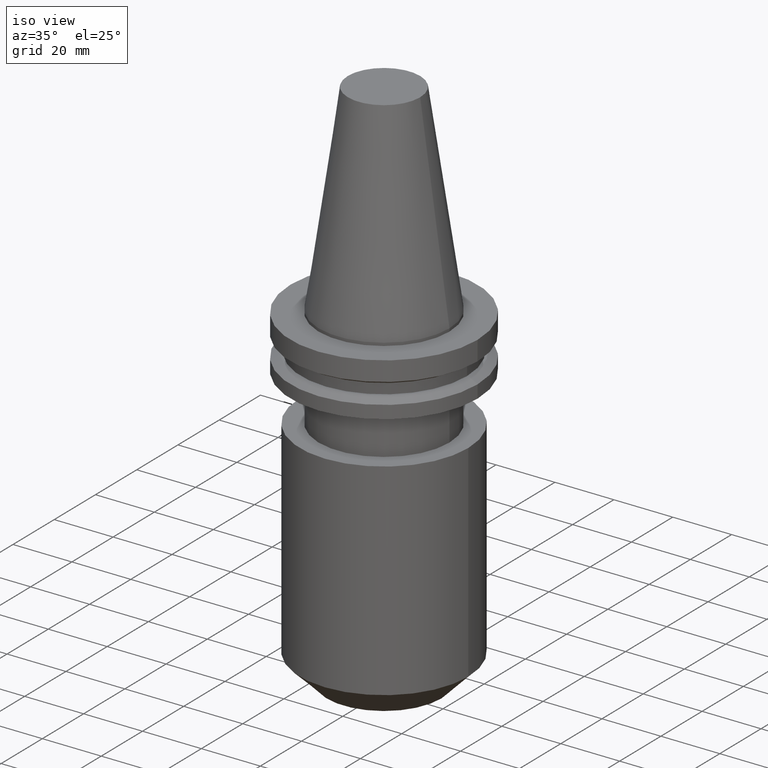
[diagram: clean part render]
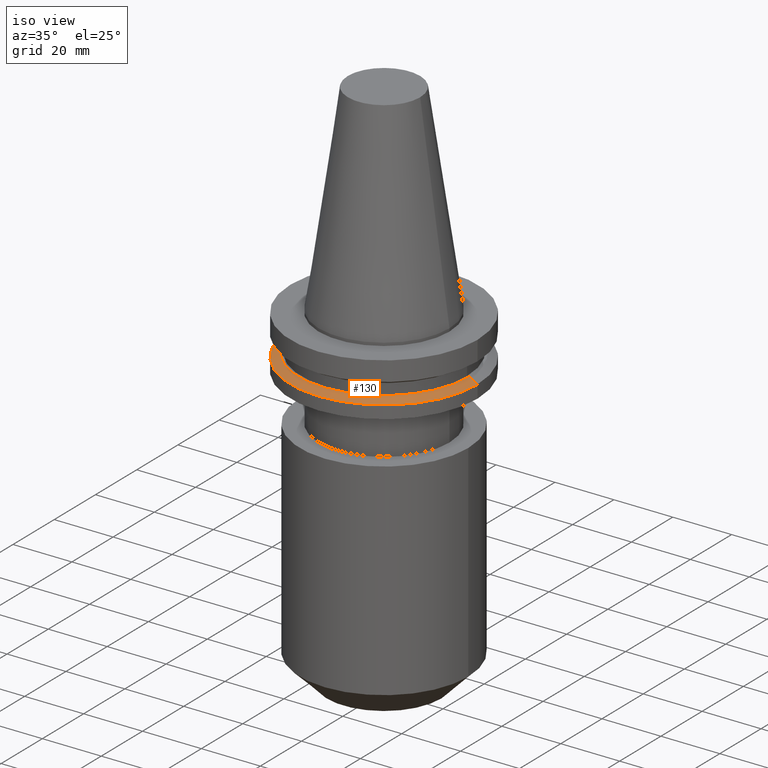
[diagram: same view with one face highlighted and labeled with its STEP entity id]
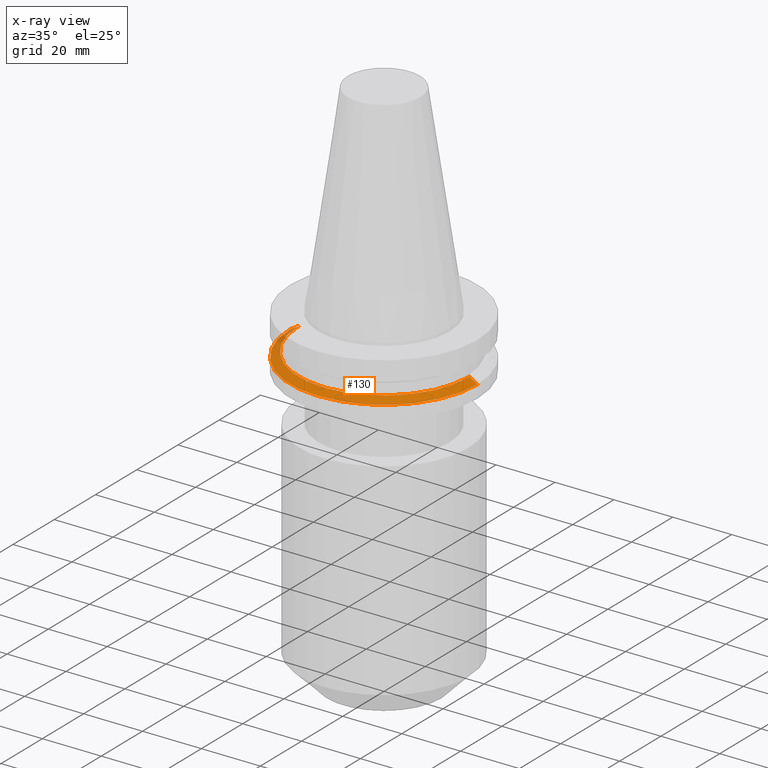
[diagram: x-ray of the same camera — body ghosted, the highlighted face saturated]
A machine part, iso view. The second image highlights one B-rep face of the part: STEP entity #130.
The next image is the same camera in x-ray: the body ghosted, the highlighted face saturated — about 3% of this face is hidden behind the body in this view.
In plain terms, the highlighted conical surface has half-angle 60 deg.
Its self-contained STEP definition (entity closure, byte-faithful):
#4 = EDGE_LOOP ( 'NONE', ( #632, #399, #512, #13 ) ) ;
#10 = DIRECTION ( 'NONE',  ( 1.000000000000000000, 0.000000000000000000, 0.000000000000000000 ) ) ;
#13 = ORIENTED_EDGE ( 'NONE', *, *, #793, .T. ) ;
#67 = CARTESIAN_POINT ( 'NONE',  ( 0.000000000000000000, 0.000000000000000000, -14.65472339340266572 ) ) ;
#126 = CARTESIAN_POINT ( 'NONE',  ( 31.75000000000000000, 3.888253587292846476E-15, -14.65472339340266572 ) ) ;
#127 = CARTESIAN_POINT ( 'NONE',  ( 0.000000000000000000, 0.000000000000000000, -14.65472339340266572 ) ) ;
#130 = ADVANCED_FACE ( 'NONE', ( #587 ), #358, .T. ) ;
#143 = CIRCLE ( 'NONE', #252, 28.97919780457008088 ) ;
#169 = VECTOR ( 'NONE', #365, 1000.000000000000000 ) ;
#191 = DIRECTION ( 'NONE',  ( -1.000000000000000000, 0.000000000000000000, 0.000000000000000000 ) ) ;
#192 = VERTEX_POINT ( 'NONE', #855 ) ;
#209 = DIRECTION ( 'NONE',  ( -0.000000000000000000, -0.000000000000000000, 1.000000000000000000 ) ) ;
#238 = CIRCLE ( 'NONE', #545, 31.75000000000000000 ) ;
#252 = AXIS2_PLACEMENT_3D ( 'NONE', #783, #209, #528 ) ;
#297 = LINE ( 'NONE', #694, #169 ) ;
#358 = CONICAL_SURFACE ( 'NONE', #571, 31.75000000000000000, 1.047197551196597853 ) ;
#365 = DIRECTION ( 'NONE',  ( -0.8660254037844387076, 0.000000000000000000, -0.4999999999999998890 ) ) ;
#386 = DIRECTION ( 'NONE',  ( 0.8660254037844387076, 1.060575238724906915E-16, -0.4999999999999998890 ) ) ;
#399 = ORIENTED_EDGE ( 'NONE', *, *, #825, .F. ) ;
#463 = VECTOR ( 'NONE', #386, 1000.000000000000000 ) ;
#478 = CARTESIAN_POINT ( 'NONE',  ( 28.97919780457008088, 3.718590885307660666E-15, -13.05499999999999794 ) ) ;
#512 = ORIENTED_EDGE ( 'NONE', *, *, #729, .T. ) ;
#528 = DIRECTION ( 'NONE',  ( 1.000000000000000000, 0.000000000000000000, 0.000000000000000000 ) ) ;
#545 = AXIS2_PLACEMENT_3D ( 'NONE', #67, #788, #10 ) ;
#548 = EDGE_CURVE ( 'NONE', #826, #656, #780, .T. ) ;
#571 = AXIS2_PLACEMENT_3D ( 'NONE', #127, #846, #191 ) ;
#574 = VERTEX_POINT ( 'NONE', #809 ) ;
#587 = FACE_OUTER_BOUND ( 'NONE', #4, .T. ) ;
#632 = ORIENTED_EDGE ( 'NONE', *, *, #548, .F. ) ;
#633 = CARTESIAN_POINT ( 'NONE',  ( 31.75000000000000000, 0.000000000000000000, -14.65472339340266572 ) ) ;
#656 = VERTEX_POINT ( 'NONE', #633 ) ;
#694 = CARTESIAN_POINT ( 'NONE',  ( -31.75000000000000000, 0.000000000000000000, -14.65472339340266572 ) ) ;
#729 = EDGE_CURVE ( 'NONE', #192, #574, #297, .T. ) ;
#780 = LINE ( 'NONE', #126, #463 ) ;
#783 = CARTESIAN_POINT ( 'NONE',  ( 0.000000000000000000, 0.000000000000000000, -13.05499999999999794 ) ) ;
#788 = DIRECTION ( 'NONE',  ( -0.000000000000000000, -0.000000000000000000, 1.000000000000000000 ) ) ;
#793 = EDGE_CURVE ( 'NONE', #574, #656, #238, .T. ) ;
#809 = CARTESIAN_POINT ( 'NONE',  ( -31.75000000000000000, 3.888253587292846476E-15, -14.65472339340266572 ) ) ;
#825 = EDGE_CURVE ( 'NONE', #192, #826, #143, .T. ) ;
#826 = VERTEX_POINT ( 'NONE', #478 ) ;
#846 = DIRECTION ( 'NONE',  ( 0.000000000000000000, 0.000000000000000000, -1.000000000000000000 ) ) ;
#855 = CARTESIAN_POINT ( 'NONE',  ( -28.97919780457008088, 0.000000000000000000, -13.05499999999999794 ) ) ;